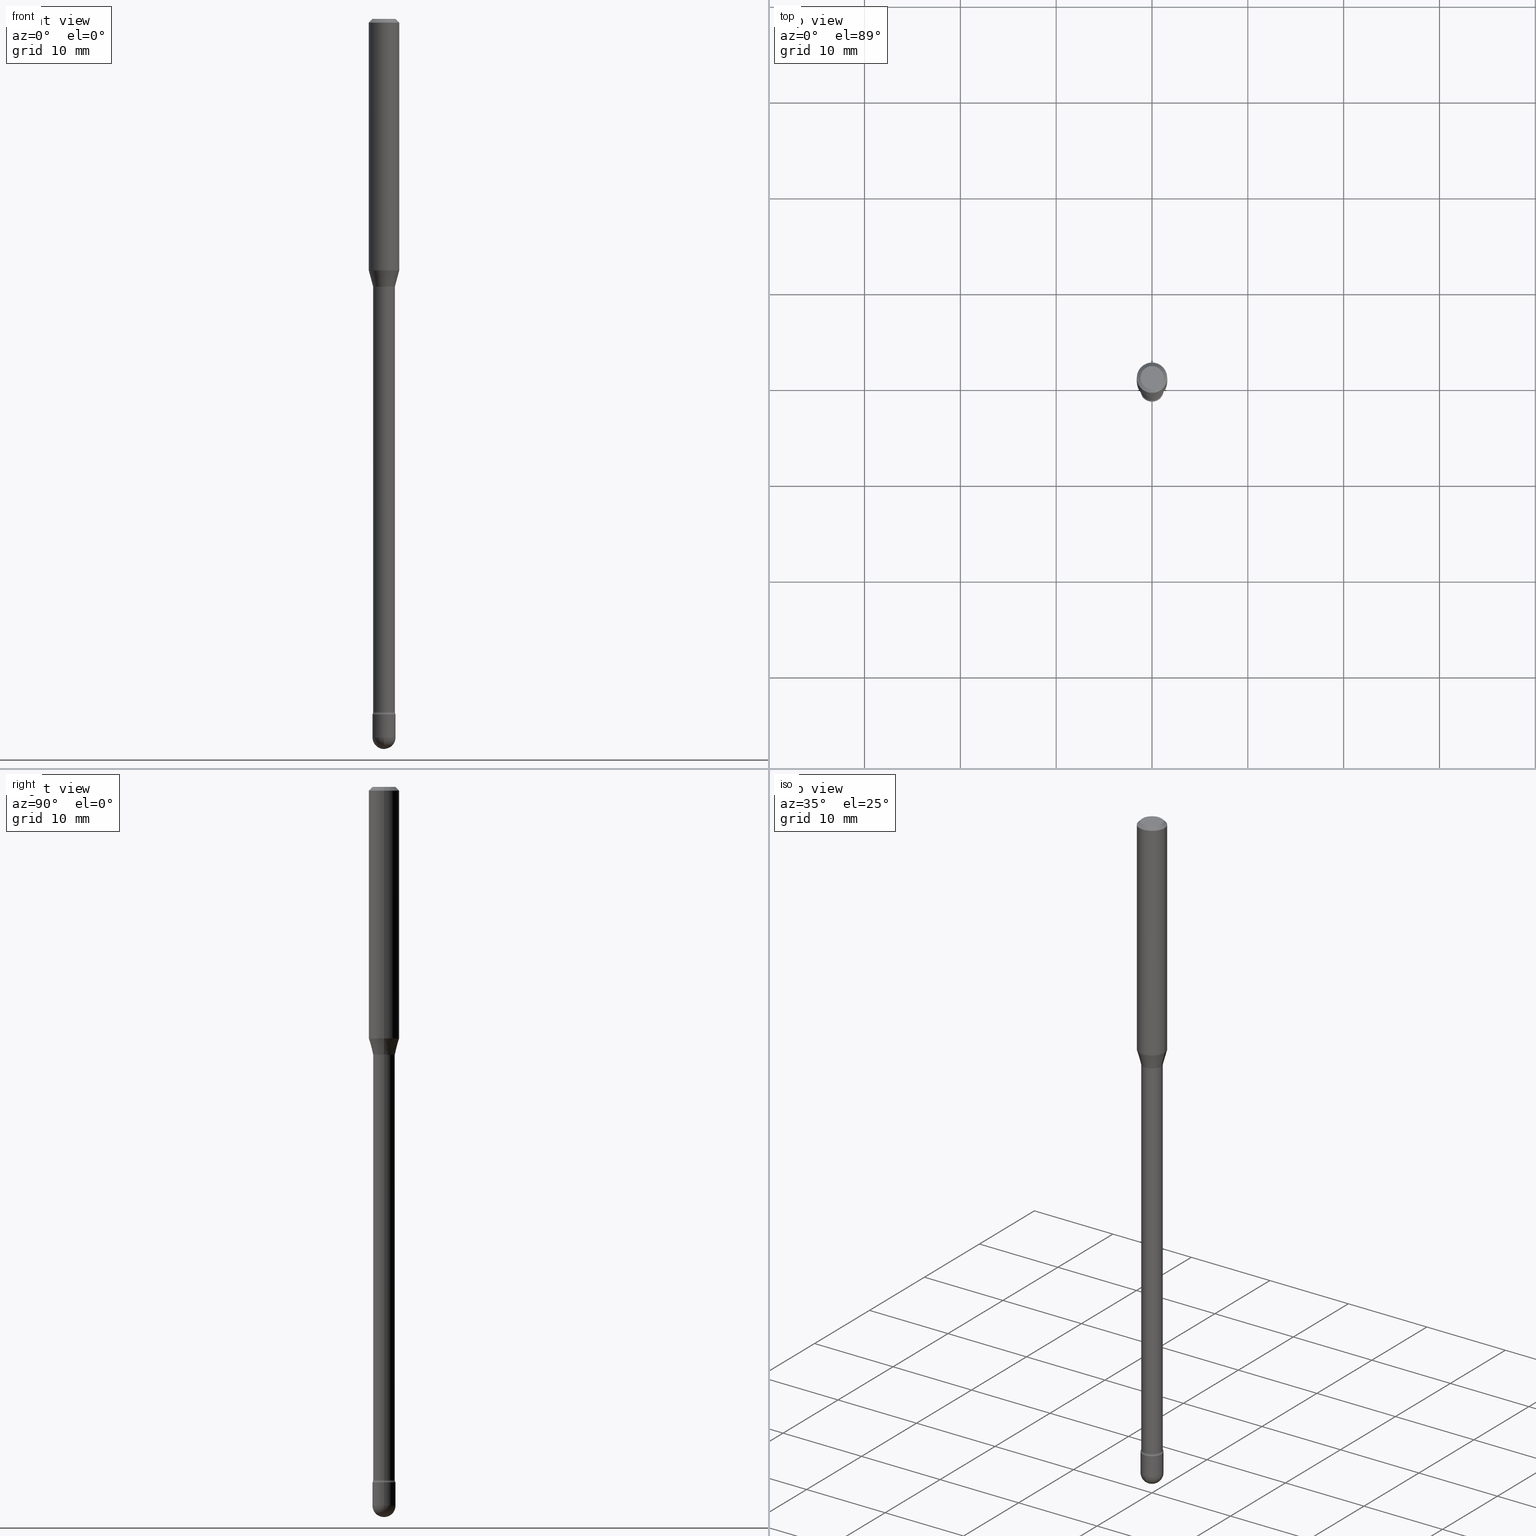
[diagram: canonical four-view strip — front | top / right | iso, engineering-drawing reading convention]
A machine part, canonical four-view strip (front | top / right | iso — engineering-drawing reading convention). The complete STEP part file that produces these views, byte-faithful:
ISO-10303-21;
HEADER;
FILE_DESCRIPTION (( 'STEP AP203' ),
    '1' );
FILE_NAME ('09562.STEP',
    '2024-04-10T00:46:31',
    ( '' ),
    ( '' ),
    'SwSTEP 2.0',
    'SolidWorks 2023',
    '' );
FILE_SCHEMA (( 'CONFIG_CONTROL_DESIGN' ));
ENDSEC;

DATA;
#1 = EDGE_CURVE ( 'NONE', #507, #110, #505, .T. ) ;
#2 = CARTESIAN_POINT ( 'NONE',  ( 2.685350959426573559E-29, -3.833969478313848817E-15, -1.098092501787273356 ) ) ;
#3 = ORIENTED_EDGE ( 'NONE', *, *, #40, .F. ) ;
#4 = EDGE_CURVE ( 'NONE', #128, #332, #480, .T. ) ;
#5 = DIRECTION ( 'NONE',  ( 0.7071067811865475727, -7.319954787623256045E-15, -0.7071067811865474617 ) ) ;
#6 = AXIS2_PLACEMENT_3D ( 'NONE', #144, #565, #142 ) ;
#7 = AXIS2_PLACEMENT_3D ( 'NONE', #378, #346, #288 ) ;
#8 = DIRECTION ( 'NONE',  ( 1.000000000000000000, -6.982962677686260400E-15, 0.000000000000000000 ) ) ;
#9 = ORIENTED_EDGE ( 'NONE', *, *, #1, .T. ) ;
#10 = ADVANCED_FACE ( 'NONE', ( #482 ), #146, .T. ) ;
#11 = FACE_OUTER_BOUND ( 'NONE', #471, .T. ) ;
#12 = CARTESIAN_POINT ( 'NONE',  ( 0.04750000000000000749, -1.047357114619472363E-14, -2.952500000000000124 ) ) ;
#13 = CC_DESIGN_PERSON_AND_ORGANIZATION_ASSIGNMENT ( #563, #485, ( #184 ) ) ;
#14 = LINE ( 'NONE', #238, #461 ) ;
#15 = AXIS2_PLACEMENT_3D ( 'NONE', #373, #532, #156 ) ;
#16 = AXIS2_PLACEMENT_3D ( 'NONE', #410, #55, #17 ) ;
#17 = DIRECTION ( 'NONE',  ( 1.000000000000000000, -6.982962677686261977E-15, 0.000000000000000000 ) ) ;
#18 = DIRECTION ( 'NONE',  ( 1.000000000000000000, -6.982962677686249356E-15, 0.000000000000000000 ) ) ;
#19 = EDGE_LOOP ( 'NONE', ( #307, #488, #86, #281 ) ) ;
#20 = ADVANCED_FACE ( 'NONE', ( #45 ), #94, .T. ) ;
#21 = CC_DESIGN_DATE_AND_TIME_ASSIGNMENT ( #62, #75, ( #184 ) ) ;
#22 = ORIENTED_EDGE ( 'NONE', *, *, #230, .T. ) ;
#23 = PRODUCT_DEFINITION_FORMATION_WITH_SPECIFIED_SOURCE ( 'ANY', '', #74, .NOT_KNOWN. ) ;
#24 = DIMENSIONAL_EXPONENTS ( 1.000000000000000000, 0.000000000000000000, 0.000000000000000000, 0.000000000000000000, 0.000000000000000000, 0.000000000000000000, 0.000000000000000000 ) ;
#25 = VERTEX_POINT ( 'NONE', #512 ) ;
#26 = EDGE_CURVE ( 'NONE', #256, #110, #539, .T. ) ;
#27 = PERSON_AND_ORGANIZATION_ROLE ( 'design_owner' ) ;
#28 = DIRECTION ( 'NONE',  ( 1.000000000000000000, -6.982962677686260400E-15, 0.000000000000000000 ) ) ;
#29 = EDGE_LOOP ( 'NONE', ( #495, #3, #53, #84 ) ) ;
#30 = DIRECTION ( 'NONE',  ( 1.000000000000000000, -6.982962677686267499E-15, 4.884662768193073002E-29 ) ) ;
#31 = ADVANCED_FACE ( 'NONE', ( #226 ), #268, .T. ) ;
#32 = ORIENTED_EDGE ( 'NONE', *, *, #529, .T. ) ;
#33 = DIRECTION ( 'NONE',  ( -2.445468806185136597E-29, 3.491481338843145583E-15, 1.000000000000000000 ) ) ;
#34 = CIRCLE ( 'NONE', #401, 0.04749999999999999362 ) ;
#35 = ORIENTED_EDGE ( 'NONE', *, *, #26, .F. ) ;
#36 = DIRECTION ( 'NONE',  ( 2.445468806185136597E-29, -3.491481338843145583E-15, -1.000000000000000000 ) ) ;
#37 = CARTESIAN_POINT ( 'NONE',  ( 2.023552857353652888E-45, -2.889097183224559242E-31, -8.274703207154537794E-17 ) ) ;
#38 = CARTESIAN_POINT ( 'NONE',  ( -0.04750000000000000749, -9.804372619518581780E-15, -2.952500000000000124 ) ) ;
#39 = DIRECTION ( 'NONE',  ( -2.445468806185136597E-29, 3.491481338843145583E-15, 1.000000000000000000 ) ) ;
#40 = EDGE_CURVE ( 'NONE', #256, #177, #490, .T. ) ;
#41 = CARTESIAN_POINT ( 'NONE',  ( 7.220246650261616071E-29, -1.030859865293438799E-14, -2.952500000000000124 ) ) ;
#42 = CARTESIAN_POINT ( 'NONE',  ( 7.220246650261616071E-29, -1.030859865293438799E-14, -2.952500000000000124 ) ) ;
#43 = CIRCLE ( 'NONE', #371, 0.06250000000000000000 ) ;
#44 = EDGE_CURVE ( 'NONE', #247, #25, #112, .T. ) ;
#45 = FACE_OUTER_BOUND ( 'NONE', #528, .T. ) ;
#46 = CARTESIAN_POINT ( 'NONE',  ( -3.375077994859753129E-16, -0.04750000000001031175, -2.952500000000000124 ) ) ;
#47 = CARTESIAN_POINT ( 'NONE',  ( 2.694844967945245742E-29, -3.847524406305537825E-15, -1.101974787463811056 ) ) ;
#48 = CARTESIAN_POINT ( 'NONE',  ( 0.000000000000000000, 0.000000000000000000, 0.000000000000000000 ) ) ;
#49 = AXIS2_PLACEMENT_3D ( 'NONE', #351, #437, #402 ) ;
#50 = AXIS2_PLACEMENT_3D ( 'NONE', #326, #119, #196 ) ;
#51 = DIRECTION ( 'NONE',  ( -2.445468806185136597E-29, 3.491481338843145583E-15, 1.000000000000000000 ) ) ;
#52 = MECHANICAL_CONTEXT ( 'NONE', #546, 'mechanical' ) ;
#53 = ORIENTED_EDGE ( 'NONE', *, *, #26, .T. ) ;
#54 = DIRECTION ( 'NONE',  ( 1.000000000000000000, 0.000000000000000000, 0.000000000000000000 ) ) ;
#55 = DIRECTION ( 'NONE',  ( -2.445468806185136597E-29, 3.491481338843145583E-15, 1.000000000000000000 ) ) ;
#56 = CARTESIAN_POINT ( 'NONE',  ( 6.986704379270935831E-29, -9.975162185074867400E-15, -2.857000000000000206 ) ) ;
#57 = CARTESIAN_POINT ( 'NONE',  ( 6.986704379270935831E-29, -9.975162185074867400E-15, -2.857000000000000206 ) ) ;
#58 = DIRECTION ( 'NONE',  ( -2.445468806185136597E-29, 3.491481338843145583E-15, 1.000000000000000000 ) ) ;
#59 = AXIS2_PLACEMENT_3D ( 'NONE', #79, #427, #28 ) ;
#60 = ORIENTED_EDGE ( 'NONE', *, *, #324, .T. ) ;
#61 = APPROVAL_PERSON_ORGANIZATION ( #543, #489, #526 ) ;
#62 = DATE_AND_TIME ( #105, #434 ) ;
#63 = DIRECTION ( 'NONE',  ( -2.445468806185136877E-29, 3.491481338843145188E-15, 1.000000000000000000 ) ) ;
#64 = DIRECTION ( 'NONE',  ( 1.000000000000000000, -6.982962677686261977E-15, 0.000000000000000000 ) ) ;
#65 =( NAMED_UNIT ( * ) SI_UNIT ( $, .STERADIAN. ) SOLID_ANGLE_UNIT ( ) );
#66 = ORIENTED_EDGE ( 'NONE', *, *, #230, .F. ) ;
#67 = ADVANCED_FACE ( 'NONE', ( #438 ), #519, .F. ) ;
#68 =( LENGTH_UNIT ( ) NAMED_UNIT ( * ) SI_UNIT ( $, .METRE. ) );
#69 = ORIENTED_EDGE ( 'NONE', *, *, #193, .T. ) ;
#70 = DIRECTION ( 'NONE',  ( 0.2588190451025205729, 1.565188264969628081E-15, 0.9659258262890684232 ) ) ;
#71 = CARTESIAN_POINT ( 'NONE',  ( 3.316907271901674731E-16, 0.04749999999999002243, -2.857000000000000206 ) ) ;
#72 = VERTEX_POINT ( 'NONE', #185 ) ;
#73 = AXIS2_PLACEMENT_3D ( 'NONE', #408, #264, #436 ) ;
#74 = PRODUCT ( '09562', '09562', '', ( #52 ) ) ;
#75 = DATE_TIME_ROLE ( 'classification_date' ) ;
#76 = VECTOR ( 'NONE', #122, 39.37007874015748143 ) ;
#77 = DATE_TIME_ROLE ( 'creation_date' ) ;
#78 = ORIENTED_EDGE ( 'NONE', *, *, #4, .F. ) ;
#79 = CARTESIAN_POINT ( 'NONE',  ( 7.220246650261616071E-29, -1.030859865293438799E-14, -2.952500000000000124 ) ) ;
#80 = ORIENTED_EDGE ( 'NONE', *, *, #380, .F. ) ;
#81 = FACE_OUTER_BOUND ( 'NONE', #202, .T. ) ;
#82 = EDGE_CURVE ( 'NONE', #25, #118, #400, .T. ) ;
#83 = DIRECTION ( 'NONE',  ( -2.445468806185136597E-29, 3.491481338843145583E-15, 1.000000000000000000 ) ) ;
#84 = ORIENTED_EDGE ( 'NONE', *, *, #446, .T. ) ;
#85 = APPROVAL_ROLE ( '' ) ;
#86 = ORIENTED_EDGE ( 'NONE', *, *, #452, .T. ) ;
#87 = EDGE_CURVE ( 'NONE', #247, #287, #475, .T. ) ;
#88 = AXIS2_PLACEMENT_3D ( 'NONE', #286, #381, #18 ) ;
#89 = AXIS2_PLACEMENT_3D ( 'NONE', #48, #104, #418 ) ;
#90 = ORIENTED_EDGE ( 'NONE', *, *, #4, .T. ) ;
#91 = DIRECTION ( 'NONE',  ( -2.438088387897960049E-29, 3.491481338843145188E-15, 1.000000000000000000 ) ) ;
#92 = ADVANCED_FACE ( 'NONE', ( #300 ), #530, .F. ) ;
#93 = CARTESIAN_POINT ( 'NONE',  ( 7.220246650261616071E-29, -1.030859865293438799E-14, -2.952500000000000124 ) ) ;
#94 = CYLINDRICAL_SURFACE ( 'NONE', #323, 0.04465000000000009933 ) ;
#95 = DIRECTION ( 'NONE',  ( -0.7071067811865475727, 2.468850131082257455E-15, -0.7071067811865474617 ) ) ;
#96 = ORIENTED_EDGE ( 'NONE', *, *, #318, .T. ) ;
#97 = LINE ( 'NONE', #298, #433 ) ;
#98 = CARTESIAN_POINT ( 'NONE',  ( 7.220246650261616071E-29, -1.030859865293438799E-14, -2.952500000000000124 ) ) ;
#99 = AXIS2_PLACEMENT_3D ( 'NONE', #71, #131, #200 ) ;
#100 = DIRECTION ( 'NONE',  ( 1.000000000000000000, -6.982962677686266711E-15, 4.890776238491175776E-29 ) ) ;
#101 = DIRECTION ( 'NONE',  ( -2.445468806185136597E-29, 3.491481338843145583E-15, 1.000000000000000000 ) ) ;
#102 =( NAMED_UNIT ( * ) PLANE_ANGLE_UNIT ( ) SI_UNIT ( $, .RADIAN. ) );
#103 = ORIENTED_EDGE ( 'NONE', *, *, #44, .T. ) ;
#104 = DIRECTION ( 'NONE',  ( -2.445468806185136597E-29, 3.491481338843145583E-15, 1.000000000000000000 ) ) ;
#105 = CALENDAR_DATE ( 2024, 9, 4 ) ;
#106 = AXIS2_PLACEMENT_3D ( 'NONE', #107, #451, #54 ) ;
#107 = CARTESIAN_POINT ( 'NONE',  ( 0.000000000000000000, 0.000000000000000000, 0.000000000000000000 ) ) ;
#108 = ORIENTED_EDGE ( 'NONE', *, *, #246, .T. ) ;
#109 = ADVANCED_FACE ( 'NONE', ( #477 ), #222, .F. ) ;
#110 = VERTEX_POINT ( 'NONE', #559 ) ;
#111 = LINE ( 'NONE', #158, #361 ) ;
#112 = CIRCLE ( 'NONE', #486, 0.04749999999999998668 ) ;
#113 = DIRECTION ( 'NONE',  ( -1.000000000000000000, 7.105427357601001070E-15, -4.926315508542082329E-29 ) ) ;
#114 = CC_DESIGN_PERSON_AND_ORGANIZATION_ASSIGNMENT ( #176, #27, ( #74 ) ) ;
#115 = CIRCLE ( 'NONE', #130, 0.01499999999999997689 ) ;
#116 = ORIENTED_EDGE ( 'NONE', *, *, #283, .F. ) ;
#117 = APPROVAL_PERSON_ORGANIZATION ( #306, #523, #470 ) ;
#118 = VERTEX_POINT ( 'NONE', #38 ) ;
#119 = DIRECTION ( 'NONE',  ( -2.445468806185136597E-29, 3.491481338843145583E-15, 1.000000000000000000 ) ) ;
#120 = ADVANCED_FACE ( 'NONE', ( #354 ), #454, .T. ) ;
#121 = CARTESIAN_POINT ( 'NONE',  ( -1.169113584055446105E-44, 1.669184350826100908E-30, 4.780733988912460139E-16 ) ) ;
#122 = DIRECTION ( 'NONE',  ( -2.445468806185136877E-29, 3.491481338843145188E-15, 1.000000000000000000 ) ) ;
#123 = VERTEX_POINT ( 'NONE', #439 ) ;
#124 = CARTESIAN_POINT ( 'NONE',  ( 0.05965000000000016817, -1.036098327424607142E-14, -2.848203551853162985 ) ) ;
#125 = PERSON_AND_ORGANIZATION_ROLE ( 'creator' ) ;
#126 = EDGE_CURVE ( 'NONE', #287, #152, #229, .T. ) ;
#127 = DIRECTION ( 'NONE',  ( -2.445468806185136877E-29, 3.491481338843145188E-15, 1.000000000000000000 ) ) ;
#128 = VERTEX_POINT ( 'NONE', #524 ) ;
#129 = AXIS2_PLACEMENT_3D ( 'NONE', #42, #147, #8 ) ;
#130 = AXIS2_PLACEMENT_3D ( 'NONE', #124, #386, #394 ) ;
#131 = DIRECTION ( 'NONE',  ( -2.438088387897960049E-29, 3.491481338843145188E-15, 1.000000000000000000 ) ) ;
#132 = VERTEX_POINT ( 'NONE', #407 ) ;
#133 = CARTESIAN_POINT ( 'NONE',  ( 7.338437438492210348E-29, -1.047153548038146136E-14, -3.000000000000000444 ) ) ;
#134 = ORIENTED_EDGE ( 'NONE', *, *, #193, .F. ) ;
#135 = EDGE_CURVE ( 'NONE', #177, #256, #409, .T. ) ;
#136 = PERSON_AND_ORGANIZATION_ROLE ( 'design_supplier' ) ;
#137 = ADVANCED_FACE ( 'NONE', ( #11 ), #239, .F. ) ;
#138 = COORDINATED_UNIVERSAL_TIME_OFFSET ( 5, 0, .BEHIND. ) ;
#139 = CIRCLE ( 'NONE', #388, 0.04749999999999999362 ) ;
#140 = CIRCLE ( 'NONE', #223, 0.06250000000000000000 ) ;
#141 = CC_DESIGN_APPROVAL ( #489, ( #184 ) ) ;
#142 = DIRECTION ( 'NONE',  ( 1.000000000000000000, -6.982962677686269077E-15, 0.000000000000000000 ) ) ;
#143 = DIRECTION ( 'NONE',  ( 1.000000000000000000, -6.982962677686267499E-15, 4.884662768193073002E-29 ) ) ;
#144 = CARTESIAN_POINT ( 'NONE',  ( 2.685350959426573559E-29, -3.833969478313848817E-15, -1.098092501787273356 ) ) ;
#145 = LINE ( 'NONE', #484, #487 ) ;
#146 = CYLINDRICAL_SURFACE ( 'NONE', #459, 0.04465000000000009933 ) ;
#147 = DIRECTION ( 'NONE',  ( -2.445468806185136597E-29, 3.491481338843145583E-15, 1.000000000000000000 ) ) ;
#148 = CARTESIAN_POINT ( 'NONE',  ( 0.06250000000000000000, -4.364351673553899931E-16, 4.780733988912490708E-16 ) ) ;
#149 = VECTOR ( 'NONE', #127, 39.37007874015748143 ) ;
#150 = CARTESIAN_POINT ( 'NONE',  ( -0.04749999999999997280, -9.637654385588820695E-15, -2.857000000000000206 ) ) ;
#151 = LINE ( 'NONE', #266, #352 ) ;
#152 = VERTEX_POINT ( 'NONE', #12 ) ;
#153 = ADVANCED_FACE ( 'NONE', ( #218 ), #236, .T. ) ;
#154 = AXIS2_PLACEMENT_3D ( 'NONE', #181, #178, #566 ) ;
#155 = AXIS2_PLACEMENT_3D ( 'NONE', #41, #33, #319 ) ;
#156 = DIRECTION ( 'NONE',  ( -1.000000000000000000, 7.105427357601001859E-15, 0.000000000000000000 ) ) ;
#157 = ORIENTED_EDGE ( 'NONE', *, *, #187, .F. ) ;
#158 = CARTESIAN_POINT ( 'NONE',  ( -0.04750000000000000749, 3.375077994860476415E-16, -2.336494167871080260E-30 ) ) ;
#159 = EDGE_CURVE ( 'NONE', #237, #72, #194, .T. ) ;
#160 = DIRECTION ( 'NONE',  ( 1.000000000000000000, -6.982962677686260400E-15, 0.000000000000000000 ) ) ;
#161 = COORDINATED_UNIVERSAL_TIME_OFFSET ( 5, 0, .BEHIND. ) ;
#162 = DIRECTION ( 'NONE',  ( 1.000000000000000000, -6.982962677686269077E-15, 0.000000000000000000 ) ) ;
#163 = AXIS2_PLACEMENT_3D ( 'NONE', #189, #421, #478 ) ;
#164 = CIRCLE ( 'NONE', #59, 0.04750000000000000749 ) ;
#165 = CARTESIAN_POINT ( 'NONE',  ( 0.04516111260566398056, -4.149327842121987234E-15, -1.098092501787273356 ) ) ;
#166 = CARTESIAN_POINT ( 'NONE',  ( -1.169113584055446105E-44, 1.669184350826100908E-30, 4.780733988912460139E-16 ) ) ;
#167 = ORIENTED_EDGE ( 'NONE', *, *, #135, .F. ) ;
#168 = DIRECTION ( 'NONE',  ( -7.105427357601001070E-15, -1.000000000000000000, 0.000000000000000000 ) ) ;
#169 = ORIENTED_EDGE ( 'NONE', *, *, #417, .T. ) ;
#170 = DIRECTION ( 'NONE',  ( -2.445468806185136597E-29, 3.491481338843145583E-15, 1.000000000000000000 ) ) ;
#171 = APPROVAL_DATE_TIME ( #548, #523 ) ;
#172 = CARTESIAN_POINT ( 'NONE',  ( -0.04465000000000018954, -9.632423302297009755E-15, -2.848203551853162985 ) ) ;
#173 = CIRCLE ( 'NONE', #50, 0.04465000000000018954 ) ;
#174 = FACE_OUTER_BOUND ( 'NONE', #426, .T. ) ;
#175 = ORIENTED_EDGE ( 'NONE', *, *, #318, .F. ) ;
#176 = PERSON_AND_ORGANIZATION ( #301, #564 ) ;
#177 = VERTEX_POINT ( 'NONE', #199 ) ;
#178 = DIRECTION ( 'NONE',  ( -2.445468806185136597E-29, 3.491481338843145583E-15, 1.000000000000000000 ) ) ;
#179 = PERSON_AND_ORGANIZATION ( #301, #564 ) ;
#180 = CARTESIAN_POINT ( 'NONE',  ( 0.05965000000000000163, -4.264058130029524354E-15, -1.101974787463811278 ) ) ;
#181 = CARTESIAN_POINT ( 'NONE',  ( 2.694844967945245742E-29, -3.847524406305538614E-15, -1.101974787463811278 ) ) ;
#182 = AXIS2_PLACEMENT_3D ( 'NONE', #180, #515, #404 ) ;
#183 = CIRCLE ( 'NONE', #190, 0.04749999999999999362 ) ;
#184 = SECURITY_CLASSIFICATION ( '', '', #220 ) ;
#185 = CARTESIAN_POINT ( 'NONE',  ( 0.04465000000000018954, -1.025623883408077648E-14, -2.848203551853162985 ) ) ;
#186 = CARTESIAN_POINT ( 'NONE',  ( 0.04750000000000000749, -3.316907271900977082E-16, 2.316183968503069432E-30 ) ) ;
#187 = EDGE_CURVE ( 'NONE', #237, #276, #272, .T. ) ;
#188 = EDGE_LOOP ( 'NONE', ( #350, #252, #90, #66 ) ) ;
#189 = CARTESIAN_POINT ( 'NONE',  ( 6.965192939722619373E-29, -9.944449550522084107E-15, -2.848203551853162985 ) ) ;
#190 = AXIS2_PLACEMENT_3D ( 'NONE', #57, #368, #64 ) ;
#191 = ADVANCED_FACE ( 'NONE', ( #260 ), #289, .T. ) ;
#192 = ORIENTED_EDGE ( 'NONE', *, *, #225, .T. ) ;
#193 = EDGE_CURVE ( 'NONE', #536, #276, #139, .T. ) ;
#194 = CIRCLE ( 'NONE', #88, 0.04465000000000018954 ) ;
#195 = CIRCLE ( 'NONE', #16, 0.04749999999999999362 ) ;
#196 = DIRECTION ( 'NONE',  ( 1.000000000000000000, -6.982962677686249356E-15, 0.000000000000000000 ) ) ;
#197 = EDGE_LOOP ( 'NONE', ( #557, #556, #374, #22 ) ) ;
#198 = CALENDAR_DATE ( 2024, 9, 4 ) ;
#199 = CARTESIAN_POINT ( 'NONE',  ( -0.04516111260566398056, -3.338514175270728313E-15, -1.098092501787273356 ) ) ;
#200 = DIRECTION ( 'NONE',  ( 1.000000000000000000, -6.982962677686265922E-15, 4.876176775795935793E-29 ) ) ;
#201 = DIRECTION ( 'NONE',  ( -2.445468806185136597E-29, 3.491481338843145583E-15, 1.000000000000000000 ) ) ;
#202 = EDGE_LOOP ( 'NONE', ( #428, #60 ) ) ;
#203 = CLOSED_SHELL ( 'NONE', ( #31, #153, #221, #508, #479 ) ) ;
#204 = AXIS2_PLACEMENT_3D ( 'NONE', #467, #83, #162 ) ;
#205 = DATE_AND_TIME ( #348, #345 ) ;
#206 = LINE ( 'NONE', #186, #149 ) ;
#207 = ORIENTED_EDGE ( 'NONE', *, *, #431, .F. ) ;
#208 = APPROVAL_STATUS ( 'not_yet_approved' ) ;
#209 = CARTESIAN_POINT ( 'NONE',  ( 3.668203209277725232E-31, -5.237222008264747365E-17, -0.01500000000000008271 ) ) ;
#210 = ORIENTED_EDGE ( 'NONE', *, *, #380, .T. ) ;
#211 = ORIENTED_EDGE ( 'NONE', *, *, #1, .F. ) ;
#212 = AXIS2_PLACEMENT_3D ( 'NONE', #514, #481, #267 ) ;
#213 = AXIS2_PLACEMENT_3D ( 'NONE', #257, #170, #509 ) ;
#214 = EDGE_CURVE ( 'NONE', #132, #128, #423, .T. ) ;
#215 = ORIENTED_EDGE ( 'NONE', *, *, #44, .F. ) ;
#216 = DIRECTION ( 'NONE',  ( -2.445468806185136597E-29, 3.491481338843145583E-15, 1.000000000000000000 ) ) ;
#217 = ORIENTED_EDGE ( 'NONE', *, *, #82, .F. ) ;
#218 = FACE_OUTER_BOUND ( 'NONE', #244, .T. ) ;
#219 = DIRECTION ( 'NONE',  ( 2.438088387897960049E-29, -3.491481338843145188E-15, -1.000000000000000000 ) ) ;
#220 = SECURITY_CLASSIFICATION_LEVEL ( 'unclassified' ) ;
#221 = ADVANCED_FACE ( 'NONE', ( #81 ), #389, .T. ) ;
#222 = TOROIDAL_SURFACE ( 'NONE', #49, 0.05965000000000016817, 0.01499999999999997689 ) ;
#223 = AXIS2_PLACEMENT_3D ( 'NONE', #397, #216, #561 ) ;
#224 = MANIFOLD_SOLID_BREP ( 'Body-Move/Copy2[1]', #203 ) ;
#225 = EDGE_CURVE ( 'NONE', #259, #338, #34, .T. ) ;
#226 = FACE_OUTER_BOUND ( 'NONE', #331, .T. ) ;
#227 = CARTESIAN_POINT ( 'NONE',  ( 2.023552857353652888E-45, -2.889097183224559242E-31, -8.274703207154537794E-17 ) ) ;
#228 = DIRECTION ( 'NONE',  ( -2.445468806185136597E-29, 3.491481338843145583E-15, 1.000000000000000000 ) ) ;
#229 = CIRCLE ( 'NONE', #129, 0.04750000000000000749 ) ;
#230 = EDGE_CURVE ( 'NONE', #424, #332, #140, .T. ) ;
#231 = CIRCLE ( 'NONE', #448, 0.06250000000000000000 ) ;
#232 = FACE_OUTER_BOUND ( 'NONE', #29, .T. ) ;
#233 = EDGE_LOOP ( 'NONE', ( #175, #347, #339, #211 ) ) ;
#234 = ORIENTED_EDGE ( 'NONE', *, *, #356, .T. ) ;
#235 = DIRECTION ( 'NONE',  ( 1.000000000000000000, -6.982962677686261977E-15, 0.000000000000000000 ) ) ;
#236 = SPHERICAL_SURFACE ( 'NONE', #552, 0.04749999999999998668 ) ;
#237 = VERTEX_POINT ( 'NONE', #172 ) ;
#238 = CARTESIAN_POINT ( 'NONE',  ( 0.06250000000000000000, -4.811533449433681963E-16, -0.01500000000000008271 ) ) ;
#239 = TOROIDAL_SURFACE ( 'NONE', #163, 0.05965000000000016817, 0.01499999999999997689 ) ;
#240 = CC_DESIGN_SECURITY_CLASSIFICATION ( #184, ( #23 ) ) ;
#241 = CARTESIAN_POINT ( 'NONE',  ( 2.527105629884462696E-29, -3.608037087085655034E-15, -1.033382893084895837 ) ) ;
#242 = ORIENTED_EDGE ( 'NONE', *, *, #353, .F. ) ;
#243 = DIRECTION ( 'NONE',  ( -2.445468806185136597E-29, 3.491481338843145583E-15, 1.000000000000000000 ) ) ;
#244 = EDGE_LOOP ( 'NONE', ( #215, #343, #355, #217 ) ) ;
#245 = FACE_OUTER_BOUND ( 'NONE', #303, .T. ) ;
#246 = EDGE_CURVE ( 'NONE', #72, #536, #115, .T. ) ;
#247 = VERTEX_POINT ( 'NONE', #133 ) ;
#248 = AXIS2_PLACEMENT_3D ( 'NONE', #520, #277, #312 ) ;
#249 = ORIENTED_EDGE ( 'NONE', *, *, #279, .T. ) ;
#250 = CYLINDRICAL_SURFACE ( 'NONE', #491, 0.06250000000000000000 ) ;
#251 = DIRECTION ( 'NONE',  ( -0.2588190451025205729, 5.211531920934545520E-15, 0.9659258262890684232 ) ) ;
#252 = ORIENTED_EDGE ( 'NONE', *, *, #214, .T. ) ;
#253 = CARTESIAN_POINT ( 'NONE',  ( 6.986704379270935831E-29, -9.975162185074867400E-15, -2.857000000000000206 ) ) ;
#254 = APPROVAL_STATUS ( 'not_yet_approved' ) ;
#255 = CARTESIAN_POINT ( 'NONE',  ( -0.04465000000000000219, -6.578729646896923703E-15, -1.101974787463811056 ) ) ;
#256 = VERTEX_POINT ( 'NONE', #469 ) ;
#257 = CARTESIAN_POINT ( 'NONE',  ( 2.527105629884462696E-29, -3.608037087085655034E-15, -1.033382893084895837 ) ) ;
#258 = COORDINATED_UNIVERSAL_TIME_OFFSET ( 5, 0, .BEHIND. ) ;
#259 = VERTEX_POINT ( 'NONE', #430 ) ;
#260 = FACE_OUTER_BOUND ( 'NONE', #197, .T. ) ;
#261 = AXIS2_PLACEMENT_3D ( 'NONE', #2, #51, #412 ) ;
#262 = PRODUCT_DEFINITION_SHAPE ( 'NONE', 'NONE',  #473 ) ;
#263 = AXIS2_PLACEMENT_3D ( 'NONE', #333, #553, #503 ) ;
#264 = DIRECTION ( 'NONE',  ( -2.445468806185136597E-29, 3.491481338843145583E-15, 1.000000000000000000 ) ) ;
#265 = DIRECTION ( 'NONE',  ( 6.982962677686265133E-15, 1.000000000000000000, 0.000000000000000000 ) ) ;
#266 = CARTESIAN_POINT ( 'NONE',  ( -0.06250000000000000000, 3.840629472727441958E-16, -0.01500000000000008271 ) ) ;
#267 = DIRECTION ( 'NONE',  ( 1.000000000000000000, -6.982962677686269077E-15, 0.000000000000000000 ) ) ;
#268 = CYLINDRICAL_SURFACE ( 'NONE', #73, 0.04750000000000000749 ) ;
#269 = DIRECTION ( 'NONE',  ( -2.445468806185136877E-29, 3.491481338843145188E-15, 1.000000000000000000 ) ) ;
#270 = ADVANCED_BREP_SHAPE_REPRESENTATION ( '09562', ( #224, #425, #106 ), #282 ) ;
#271 = APPROVAL_DATE_TIME ( #517, #502 ) ;
#272 = CIRCLE ( 'NONE', #15, 0.01499999999999997689 ) ;
#273 = CIRCLE ( 'NONE', #290, 0.04465000000000000219 ) ;
#274 = LOCAL_TIME ( 20, 46, 31.00000000000000000, #138 ) ;
#275 = DIRECTION ( 'NONE',  ( 1.000000000000000000, -6.982962677686266711E-15, 4.890776238491175776E-29 ) ) ;
#276 = VERTEX_POINT ( 'NONE', #150 ) ;
#277 = DIRECTION ( 'NONE',  ( -2.445468806185136597E-29, 3.491481338843145583E-15, 1.000000000000000000 ) ) ;
#278 = DIRECTION ( 'NONE',  ( -1.000000000000000000, 6.982962677686265922E-15, -4.883557194083112340E-29 ) ) ;
#279 = EDGE_CURVE ( 'NONE', #332, #424, #231, .T. ) ;
#280 = DIRECTION ( 'NONE',  ( 1.000000000000000000, -6.982962677686268288E-15, 4.883557194083113462E-29 ) ) ;
#281 = ORIENTED_EDGE ( 'NONE', *, *, #246, .F. ) ;
#282 =( GEOMETRIC_REPRESENTATION_CONTEXT ( 3 ) GLOBAL_UNCERTAINTY_ASSIGNED_CONTEXT ( ( #366 ) ) GLOBAL_UNIT_ASSIGNED_CONTEXT ( ( #398, #102, #65 ) ) REPRESENTATION_CONTEXT ( 'NONE', 'WORKASPACE' ) );
#283 = EDGE_CURVE ( 'NONE', #259, #424, #151, .T. ) ;
#284 = APPLICATION_PROTOCOL_DEFINITION ( 'international standard', 'config_control_design', 1994, #546 ) ;
#285 = DESIGN_CONTEXT ( 'detailed design', #533, 'design' ) ;
#286 = CARTESIAN_POINT ( 'NONE',  ( 6.965192939722619373E-29, -9.944449550522084107E-15, -2.848203551853162985 ) ) ;
#287 = VERTEX_POINT ( 'NONE', #46 ) ;
#288 = DIRECTION ( 'NONE',  ( -1.000000000000000000, 7.105427357600993970E-15, 0.000000000000000000 ) ) ;
#289 = CONICAL_SURFACE ( 'NONE', #474, 0.06250000000000000000, 0.7853981633974483900 ) ;
#290 = AXIS2_PLACEMENT_3D ( 'NONE', #47, #228, #322 ) ;
#291 = ORIENTED_EDGE ( 'NONE', *, *, #126, .F. ) ;
#292 = EDGE_CURVE ( 'NONE', #338, #259, #411, .T. ) ;
#293 = EDGE_LOOP ( 'NONE', ( #167, #32, #9, #35 ) ) ;
#294 = DIRECTION ( 'NONE',  ( -2.445468806185136877E-29, 3.491481338843145188E-15, 1.000000000000000000 ) ) ;
#295 = EDGE_LOOP ( 'NONE', ( #192, #541 ) ) ;
#296 = DATE_AND_TIME ( #198, #391 ) ;
#297 = CARTESIAN_POINT ( 'NONE',  ( -0.06250000000000000000, 4.440892098500642925E-16, 4.780733988912429571E-16 ) ) ;
#298 = CARTESIAN_POINT ( 'NONE',  ( -0.04516111260566398056, -3.513080473305864602E-15, -1.098092501787273356 ) ) ;
#299 = ORIENTED_EDGE ( 'NONE', *, *, #40, .T. ) ;
#300 = FACE_OUTER_BOUND ( 'NONE', #293, .T. ) ;
#301 = PERSON ( 'UNSPECIFIED', 'UNSPECIFIED', 'UNSPECIFIED', ('UNSPECIFIED'), ('UNSPECIFIED'), ('UNSPECIFIED') ) ;
#302 = LINE ( 'NONE', #313, #76 ) ;
#303 = EDGE_LOOP ( 'NONE', ( #299, #357, #242, #376 ) ) ;
#304 = ORIENTED_EDGE ( 'NONE', *, *, #462, .T. ) ;
#305 = CARTESIAN_POINT ( 'NONE',  ( 6.986704379270935831E-29, -9.975162185074867400E-15, -2.857000000000000206 ) ) ;
#306 = PERSON_AND_ORGANIZATION ( #301, #564 ) ;
#307 = ORIENTED_EDGE ( 'NONE', *, *, #159, .F. ) ;
#308 = COORDINATED_UNIVERSAL_TIME_OFFSET ( 5, 0, .BEHIND. ) ;
#309 = ORIENTED_EDGE ( 'NONE', *, *, #329, .F. ) ;
#310 = DIRECTION ( 'NONE',  ( 1.000000000000000000, -6.982962677686266711E-15, 4.852736867747366207E-29 ) ) ;
#311 = CC_DESIGN_PERSON_AND_ORGANIZATION_ASSIGNMENT ( #179, #125, ( #473 ) ) ;
#312 = DIRECTION ( 'NONE',  ( 1.000000000000000000, -6.982962677686268288E-15, 0.000000000000000000 ) ) ;
#313 = CARTESIAN_POINT ( 'NONE',  ( 0.04465000000000009933, -3.117892835586907926E-16, 4.780733988912482819E-16 ) ) ;
#314 = CARTESIAN_POINT ( 'NONE',  ( 3.316907271900976096E-16, 0.04749999999999999362, 3.181781981480094004E-17 ) ) ;
#315 = CIRCLE ( 'NONE', #7, 0.01499999999999999424 ) ;
#316 = CARTESIAN_POINT ( 'NONE',  ( -1.169113584055446105E-44, 1.669184350826100908E-30, 4.780733988912460139E-16 ) ) ;
#317 = DIRECTION ( 'NONE',  ( -2.445468806185136597E-29, 3.491481338843145583E-15, 1.000000000000000000 ) ) ;
#318 = EDGE_CURVE ( 'NONE', #237, #507, #145, .T. ) ;
#319 = DIRECTION ( 'NONE',  ( 1.000000000000000000, -6.982962677686260400E-15, 0.000000000000000000 ) ) ;
#320 = EDGE_LOOP ( 'NONE', ( #468, #328, #169, #458 ) ) ;
#321 = EDGE_LOOP ( 'NONE', ( #134, #545 ) ) ;
#322 = DIRECTION ( 'NONE',  ( 1.000000000000000000, -6.982962677686268288E-15, 0.000000000000000000 ) ) ;
#323 = AXIS2_PLACEMENT_3D ( 'NONE', #316, #39, #275 ) ;
#324 = EDGE_CURVE ( 'NONE', #387, #123, #183, .T. ) ;
#325 = AXIS2_PLACEMENT_3D ( 'NONE', #227, #363, #143 ) ;
#326 = CARTESIAN_POINT ( 'NONE',  ( 6.965192939722619373E-29, -9.944449550522084107E-15, -2.848203551853162985 ) ) ;
#327 = PERSON_AND_ORGANIZATION ( #301, #564 ) ;
#328 = ORIENTED_EDGE ( 'NONE', *, *, #135, .T. ) ;
#329 = EDGE_CURVE ( 'NONE', #123, #387, #531, .T. ) ;
#330 = CARTESIAN_POINT ( 'NONE',  ( 7.220246650261616071E-29, -1.030859865293438799E-14, -2.952500000000000124 ) ) ;
#331 = EDGE_LOOP ( 'NONE', ( #440, #383, #309, #80, #463 ) ) ;
#332 = VERTEX_POINT ( 'NONE', #537 ) ;
#333 = CARTESIAN_POINT ( 'NONE',  ( 7.220246650261616071E-29, -1.030859865293438799E-14, -2.952500000000000124 ) ) ;
#334 = AXIS2_PLACEMENT_3D ( 'NONE', #314, #219, #399 ) ;
#335 = VECTOR ( 'NONE', #70, 39.37007874015748143 ) ;
#336 = CC_DESIGN_PERSON_AND_ORGANIZATION_ASSIGNMENT ( #494, #136, ( #23 ) ) ;
#337 = DIRECTION ( 'NONE',  ( 6.982962677686265922E-15, 1.000000000000000000, 0.000000000000000000 ) ) ;
#338 = VERTEX_POINT ( 'NONE', #372 ) ;
#339 = ORIENTED_EDGE ( 'NONE', *, *, #393, .T. ) ;
#340 = FACE_OUTER_BOUND ( 'NONE', #419, .T. ) ;
#341 = ORIENTED_EDGE ( 'NONE', *, *, #87, .F. ) ;
#342 = PERSON_AND_ORGANIZATION ( #301, #564 ) ;
#343 = ORIENTED_EDGE ( 'NONE', *, *, #87, .T. ) ;
#344 = AXIS2_PLACEMENT_3D ( 'NONE', #253, #91, #472 ) ;
#345 = LOCAL_TIME ( 20, 46, 31.00000000000000000, #308 ) ;
#346 = DIRECTION ( 'NONE',  ( 7.105427357601001859E-15, 1.000000000000000000, -3.491481338843145583E-15 ) ) ;
#347 = ORIENTED_EDGE ( 'NONE', *, *, #159, .T. ) ;
#348 = CALENDAR_DATE ( 2024, 9, 4 ) ;
#349 = LENGTH_MEASURE_WITH_UNIT ( LENGTH_MEASURE( 0.02539999999999999897 ), #68 );
#350 = ORIENTED_EDGE ( 'NONE', *, *, #554, .F. ) ;
#351 = CARTESIAN_POINT ( 'NONE',  ( 6.965192939722619373E-29, -9.944449550522084107E-15, -2.848203551853162985 ) ) ;
#352 = VECTOR ( 'NONE', #95, 39.37007874015748143 ) ;
#353 = EDGE_CURVE ( 'NONE', #128, #132, #43, .T. ) ;
#354 = FACE_OUTER_BOUND ( 'NONE', #320, .T. ) ;
#355 = ORIENTED_EDGE ( 'NONE', *, *, #542, .F. ) ;
#356 = EDGE_CURVE ( 'NONE', #72, #237, #173, .T. ) ;
#357 = ORIENTED_EDGE ( 'NONE', *, *, #406, .T. ) ;
#358 = EDGE_LOOP ( 'NONE', ( #432, #304, #249, #116 ) ) ;
#359 = PRODUCT_RELATED_PRODUCT_CATEGORY ( 'detail', '', ( #74 ) ) ;
#360 = AXIS2_PLACEMENT_3D ( 'NONE', #98, #58, #160 ) ;
#361 = VECTOR ( 'NONE', #294, 39.37007874015748143 ) ;
#362 = LOCAL_TIME ( 20, 46, 31.00000000000000000, #258 ) ;
#363 = DIRECTION ( 'NONE',  ( -2.445468806185136597E-29, 3.491481338843145583E-15, 1.000000000000000000 ) ) ;
#364 = CYLINDRICAL_SURFACE ( 'NONE', #89, 0.04750000000000000749 ) ;
#365 = FACE_OUTER_BOUND ( 'NONE', #188, .T. ) ;
#366 = UNCERTAINTY_MEASURE_WITH_UNIT (LENGTH_MEASURE( 1.000000000000000082E-05 ), #398, 'distance_accuracy_value', 'NONE');
#367 = EDGE_CURVE ( 'NONE', #118, #387, #111, .T. ) ;
#368 = DIRECTION ( 'NONE',  ( -2.445468806185136597E-29, 3.491481338843145583E-15, 1.000000000000000000 ) ) ;
#369 = CC_DESIGN_DATE_AND_TIME_ASSIGNMENT ( #205, #77, ( #473 ) ) ;
#370 = AXIS2_PLACEMENT_3D ( 'NONE', #330, #113, #168 ) ;
#371 = AXIS2_PLACEMENT_3D ( 'NONE', #241, #492, #498 ) ;
#372 = CARTESIAN_POINT ( 'NONE',  ( 0.04749999999999999362, -4.035134999187581581E-16, -8.274703207154280181E-17 ) ) ;
#373 = CARTESIAN_POINT ( 'NONE',  ( -0.05965000000000016817, -9.520610808641182904E-15, -2.848203551853162985 ) ) ;
#374 = ORIENTED_EDGE ( 'NONE', *, *, #283, .T. ) ;
#375 = ADVANCED_FACE ( 'NONE', ( #365 ), #527, .T. ) ;
#376 = ORIENTED_EDGE ( 'NONE', *, *, #417, .F. ) ;
#377 = APPROVAL_DATE_TIME ( #296, #489 ) ;
#378 = CARTESIAN_POINT ( 'NONE',  ( -0.05965000000000000163, -3.423685664424638595E-15, -1.101974787463811278 ) ) ;
#379 = ORIENTED_EDGE ( 'NONE', *, *, #446, .F. ) ;
#380 = EDGE_CURVE ( 'NONE', #152, #123, #206, .T. ) ;
#381 = DIRECTION ( 'NONE',  ( -2.445468806185136597E-29, 3.491481338843145583E-15, 1.000000000000000000 ) ) ;
#382 = FACE_OUTER_BOUND ( 'NONE', #321, .T. ) ;
#383 = ORIENTED_EDGE ( 'NONE', *, *, #367, .T. ) ;
#384 = DIRECTION ( 'NONE',  ( 2.445468806185136597E-29, -3.491481338843145583E-15, -1.000000000000000000 ) ) ;
#385 = ORIENTED_EDGE ( 'NONE', *, *, #542, .T. ) ;
#386 = DIRECTION ( 'NONE',  ( -6.982962677686266711E-15, -1.000000000000000000, 3.491481338843145583E-15 ) ) ;
#387 = VERTEX_POINT ( 'NONE', #500 ) ;
#388 = AXIS2_PLACEMENT_3D ( 'NONE', #305, #465, #547 ) ;
#389 = PLANE ( 'NONE',  #344 ) ;
#390 = VECTOR ( 'NONE', #63, 39.37007874015748143 ) ;
#391 = LOCAL_TIME ( 20, 46, 31.00000000000000000, #161 ) ;
#392 = EDGE_LOOP ( 'NONE', ( #534, #385, #544, #210, #453 ) ) ;
#393 = EDGE_CURVE ( 'NONE', #72, #110, #302, .T. ) ;
#394 = DIRECTION ( 'NONE',  ( 1.000000000000000000, -6.982962677686279332E-15, 0.000000000000000000 ) ) ;
#395 = CALENDAR_DATE ( 2024, 9, 4 ) ;
#396 = DIRECTION ( 'NONE',  ( -2.445468806185136877E-29, 3.491481338843145188E-15, 1.000000000000000000 ) ) ;
#397 = CARTESIAN_POINT ( 'NONE',  ( 3.668203209277725232E-31, -5.237222008264747365E-17, -0.01500000000000008271 ) ) ;
#398 =( CONVERSION_BASED_UNIT ( 'INCH', #349 ) LENGTH_UNIT ( ) NAMED_UNIT ( #24 ) );
#399 = DIRECTION ( 'NONE',  ( -1.000000000000000000, 6.982962677686265922E-15, -4.876176775795935793E-29 ) ) ;
#400 = CIRCLE ( 'NONE', #360, 0.04750000000000000749 ) ;
#401 = AXIS2_PLACEMENT_3D ( 'NONE', #37, #551, #30 ) ;
#402 = DIRECTION ( 'NONE',  ( 1.000000000000000000, -6.982962677686261189E-15, 4.883557194083110659E-29 ) ) ;
#403 = APPROVAL_PERSON_ORGANIZATION ( #342, #502, #85 ) ;
#404 = DIRECTION ( 'NONE',  ( 1.000000000000000000, -6.982962677686270655E-15, 0.000000000000000000 ) ) ;
#405 = LINE ( 'NONE', #165, #335 ) ;
#406 = EDGE_CURVE ( 'NONE', #177, #132, #97, .T. ) ;
#407 = CARTESIAN_POINT ( 'NONE',  ( -0.06250000000000000000, -3.163947877235592418E-15, -1.033382893084895837 ) ) ;
#408 = CARTESIAN_POINT ( 'NONE',  ( 0.000000000000000000, 0.000000000000000000, 0.000000000000000000 ) ) ;
#409 = CIRCLE ( 'NONE', #261, 0.04516111260566398056 ) ;
#410 = CARTESIAN_POINT ( 'NONE',  ( 6.986704379270935831E-29, -9.975162185074867400E-15, -2.857000000000000206 ) ) ;
#411 = CIRCLE ( 'NONE', #325, 0.04749999999999999362 ) ;
#412 = DIRECTION ( 'NONE',  ( 1.000000000000000000, -6.982962677686269077E-15, 0.000000000000000000 ) ) ;
#413 = CC_DESIGN_PERSON_AND_ORGANIZATION_ASSIGNMENT ( #327, #416, ( #23 ) ) ;
#414 = CARTESIAN_POINT ( 'NONE',  ( 7.220246650261616071E-29, -1.030859865293438799E-14, -2.952500000000000124 ) ) ;
#415 = CONICAL_SURFACE ( 'NONE', #204, 0.04516111260566398056, 0.2617993877991492413 ) ;
#416 = PERSON_AND_ORGANIZATION_ROLE ( 'creator' ) ;
#417 = EDGE_CURVE ( 'NONE', #256, #128, #405, .T. ) ;
#418 = DIRECTION ( 'NONE',  ( 1.000000000000000000, -6.982962677686266711E-15, 4.876176775795934672E-29 ) ) ;
#419 = EDGE_LOOP ( 'NONE', ( #341, #103, #207, #291 ) ) ;
#420 = LINE ( 'NONE', #297, #390 ) ;
#421 = DIRECTION ( 'NONE',  ( -2.445468806185136597E-29, 3.491481338843145583E-15, 1.000000000000000000 ) ) ;
#422 = APPROVAL_STATUS ( 'not_yet_approved' ) ;
#423 = CIRCLE ( 'NONE', #213, 0.06250000000000000000 ) ;
#424 = VERTEX_POINT ( 'NONE', #535 ) ;
#425 = MANIFOLD_SOLID_BREP ( 'Body-Move/Copy2[2]', #521 ) ;
#426 = EDGE_LOOP ( 'NONE', ( #504, #501, #449, #78 ) ) ;
#427 = DIRECTION ( 'NONE',  ( -2.445468806185136597E-29, 3.491481338843145583E-15, 1.000000000000000000 ) ) ;
#428 = ORIENTED_EDGE ( 'NONE', *, *, #329, .T. ) ;
#429 = ORIENTED_EDGE ( 'NONE', *, *, #356, .F. ) ;
#430 = CARTESIAN_POINT ( 'NONE',  ( -0.04749999999999999362, 3.578768372314208041E-16, -8.274703207154778150E-17 ) ) ;
#431 = EDGE_CURVE ( 'NONE', #152, #25, #555, .T. ) ;
#432 = ORIENTED_EDGE ( 'NONE', *, *, #292, .F. ) ;
#433 = VECTOR ( 'NONE', #251, 39.37007874015748143 ) ;
#434 = LOCAL_TIME ( 20, 46, 31.00000000000000000, #516 ) ;
#435 = ADVANCED_FACE ( 'NONE', ( #232 ), #441, .F. ) ;
#436 = DIRECTION ( 'NONE',  ( 1.000000000000000000, -6.982962677686266711E-15, 4.876176775795934672E-29 ) ) ;
#437 = DIRECTION ( 'NONE',  ( -2.445468806185136597E-29, 3.491481338843145583E-15, 1.000000000000000000 ) ) ;
#438 = FACE_OUTER_BOUND ( 'NONE', #295, .T. ) ;
#439 = CARTESIAN_POINT ( 'NONE',  ( 0.04749999999999999362, -1.030685291226496570E-14, -2.857000000000000206 ) ) ;
#440 = ORIENTED_EDGE ( 'NONE', *, *, #82, .T. ) ;
#441 = TOROIDAL_SURFACE ( 'NONE', #476, 0.05965000000000000163, 0.01499999999999999771 ) ;
#442 = DIRECTION ( 'NONE',  ( 1.000000000000000000, -6.982962677686265922E-15, 4.883557194083112340E-29 ) ) ;
#443 = CARTESIAN_POINT ( 'NONE',  ( 3.668203209277725232E-31, -5.237222008264747365E-17, -0.01500000000000008271 ) ) ;
#444 = DIRECTION ( 'NONE',  ( -2.445468806185136597E-29, 3.491481338843145583E-15, 1.000000000000000000 ) ) ;
#445 = DIRECTION ( 'NONE',  ( 1.000000000000000000, -6.982962677686266711E-15, 0.000000000000000000 ) ) ;
#446 = EDGE_CURVE ( 'NONE', #110, #507, #273, .T. ) ;
#447 = FACE_OUTER_BOUND ( 'NONE', #392, .T. ) ;
#448 = AXIS2_PLACEMENT_3D ( 'NONE', #443, #317, #445 ) ;
#449 = ORIENTED_EDGE ( 'NONE', *, *, #279, .F. ) ;
#450 = CC_DESIGN_APPROVAL ( #523, ( #473 ) ) ;
#451 = DIRECTION ( 'NONE',  ( 0.000000000000000000, 0.000000000000000000, 1.000000000000000000 ) ) ;
#452 = EDGE_CURVE ( 'NONE', #276, #536, #195, .T. ) ;
#453 = ORIENTED_EDGE ( 'NONE', *, *, #324, .F. ) ;
#454 = CONICAL_SURFACE ( 'NONE', #212, 0.04516111260566398056, 0.2617993877991492413 ) ;
#455 = CONICAL_SURFACE ( 'NONE', #513, 0.06250000000000000000, 0.7853981633974483900 ) ;
#456 = FACE_OUTER_BOUND ( 'NONE', #358, .T. ) ;
#457 = DIRECTION ( 'NONE',  ( 1.000000000000000000, -6.982962677686266711E-15, 4.852736867747366207E-29 ) ) ;
#458 = ORIENTED_EDGE ( 'NONE', *, *, #214, .F. ) ;
#459 = AXIS2_PLACEMENT_3D ( 'NONE', #560, #444, #100 ) ;
#460 = SPHERICAL_SURFACE ( 'NONE', #263, 0.04749999999999998668 ) ;
#461 = VECTOR ( 'NONE', #5, 39.37007874015748143 ) ;
#462 = EDGE_CURVE ( 'NONE', #338, #332, #14, .T. ) ;
#463 = ORIENTED_EDGE ( 'NONE', *, *, #431, .T. ) ;
#464 = CC_DESIGN_APPROVAL ( #502, ( #23 ) ) ;
#465 = DIRECTION ( 'NONE',  ( -2.445468806185136597E-29, 3.491481338843145583E-15, 1.000000000000000000 ) ) ;
#466 = APPLICATION_PROTOCOL_DEFINITION ( 'international standard', 'config_control_design', 1994, #533 ) ;
#467 = CARTESIAN_POINT ( 'NONE',  ( 2.685350959426573559E-29, -3.833969478313848817E-15, -1.098092501787273356 ) ) ;
#468 = ORIENTED_EDGE ( 'NONE', *, *, #406, .F. ) ;
#469 = CARTESIAN_POINT ( 'NONE',  ( 0.04516111260566398056, -4.149327842121987234E-15, -1.098092501787273356 ) ) ;
#470 = APPROVAL_ROLE ( '' ) ;
#471 = EDGE_LOOP ( 'NONE', ( #157, #429, #108, #69 ) ) ;
#472 = DIRECTION ( 'NONE',  ( 1.000000000000000000, -6.982962677686265922E-15, 4.876176775795935793E-29 ) ) ;
#473 = PRODUCT_DEFINITION ( 'UNKNOWN', '', #23, #285 ) ;
#474 = AXIS2_PLACEMENT_3D ( 'NONE', #558, #36, #510 ) ;
#475 = CIRCLE ( 'NONE', #370, 0.04749999999999998668 ) ;
#476 = AXIS2_PLACEMENT_3D ( 'NONE', #518, #101, #280 ) ;
#477 = FACE_OUTER_BOUND ( 'NONE', #19, .T. ) ;
#478 = DIRECTION ( 'NONE',  ( 1.000000000000000000, -6.982962677686261189E-15, 4.883557194083110659E-29 ) ) ;
#479 = ADVANCED_FACE ( 'NONE', ( #447 ), #364, .T. ) ;
#480 = LINE ( 'NONE', #148, #562 ) ;
#481 = DIRECTION ( 'NONE',  ( -2.445468806185136597E-29, 3.491481338843145583E-15, 1.000000000000000000 ) ) ;
#482 = FACE_OUTER_BOUND ( 'NONE', #233, .T. ) ;
#483 = ADVANCED_FACE ( 'NONE', ( #382 ), #506, .F. ) ;
#484 = CARTESIAN_POINT ( 'NONE',  ( -0.04465000000000009933, 3.172573315168871151E-16, 4.780733988912438446E-16 ) ) ;
#485 = PERSON_AND_ORGANIZATION_ROLE ( 'classification_officer' ) ;
#486 = AXIS2_PLACEMENT_3D ( 'NONE', #93, #442, #265 ) ;
#487 = VECTOR ( 'NONE', #269, 39.37007874015748143 ) ;
#488 = ORIENTED_EDGE ( 'NONE', *, *, #187, .T. ) ;
#489 = APPROVAL ( #208, 'UNSPECIFIED' ) ;
#490 = CIRCLE ( 'NONE', #6, 0.04516111260566398056 ) ;
#491 = AXIS2_PLACEMENT_3D ( 'NONE', #121, #550, #457 ) ;
#492 = DIRECTION ( 'NONE',  ( -2.445468806185136597E-29, 3.491481338843145583E-15, 1.000000000000000000 ) ) ;
#493 = ADVANCED_FACE ( 'NONE', ( #245 ), #415, .T. ) ;
#494 = PERSON_AND_ORGANIZATION ( #301, #564 ) ;
#495 = ORIENTED_EDGE ( 'NONE', *, *, #529, .F. ) ;
#496 = AXIS2_PLACEMENT_3D ( 'NONE', #56, #243, #235 ) ;
#497 = DIRECTION ( 'NONE',  ( -1.000000000000000000, 6.982962677686266711E-15, 0.000000000000000000 ) ) ;
#498 = DIRECTION ( 'NONE',  ( 1.000000000000000000, -6.982962677686270655E-15, 0.000000000000000000 ) ) ;
#499 = CARTESIAN_POINT ( 'NONE',  ( 0.04749999999999997280, -1.030685291226496570E-14, -2.857000000000000206 ) ) ;
#500 = CARTESIAN_POINT ( 'NONE',  ( -0.04749999999999999362, -9.804372619518581780E-15, -2.857000000000000206 ) ) ;
#501 = ORIENTED_EDGE ( 'NONE', *, *, #554, .T. ) ;
#502 = APPROVAL ( #254, 'UNSPECIFIED' ) ;
#503 = DIRECTION ( 'NONE',  ( 6.982962677686265922E-15, 1.000000000000000000, 0.000000000000000000 ) ) ;
#504 = ORIENTED_EDGE ( 'NONE', *, *, #353, .T. ) ;
#505 = CIRCLE ( 'NONE', #248, 0.04465000000000000219 ) ;
#506 = PLANE ( 'NONE',  #99 ) ;
#507 = VERTEX_POINT ( 'NONE', #255 ) ;
#508 = ADVANCED_FACE ( 'NONE', ( #340 ), #460, .T. ) ;
#509 = DIRECTION ( 'NONE',  ( 1.000000000000000000, -6.982962677686270655E-15, 0.000000000000000000 ) ) ;
#510 = DIRECTION ( 'NONE',  ( -1.000000000000000000, 6.982962677686266711E-15, 0.000000000000000000 ) ) ;
#511 = ADVANCED_FACE ( 'NONE', ( #174 ), #250, .T. ) ;
#512 = CARTESIAN_POINT ( 'NONE',  ( 3.316907271901697904E-16, 0.04749999999998968242, -2.952500000000000124 ) ) ;
#513 = AXIS2_PLACEMENT_3D ( 'NONE', #209, #384, #497 ) ;
#514 = CARTESIAN_POINT ( 'NONE',  ( 2.685350959426573559E-29, -3.833969478313848817E-15, -1.098092501787273356 ) ) ;
#515 = DIRECTION ( 'NONE',  ( -6.982962677686266711E-15, -1.000000000000000000, 3.491481338843145583E-15 ) ) ;
#516 = COORDINATED_UNIVERSAL_TIME_OFFSET ( 5, 0, .BEHIND. ) ;
#517 = DATE_AND_TIME ( #525, #362 ) ;
#518 = CARTESIAN_POINT ( 'NONE',  ( 2.694844967945245742E-29, -3.847524406305538614E-15, -1.101974787463811278 ) ) ;
#519 = PLANE ( 'NONE',  #334 ) ;
#520 = CARTESIAN_POINT ( 'NONE',  ( 2.694844967945245742E-29, -3.847524406305537825E-15, -1.101974787463811056 ) ) ;
#521 = CLOSED_SHELL ( 'NONE', ( #92, #20, #109, #549, #511, #493, #120, #375, #191, #67, #483, #137, #10, #435 ) ) ;
#522 = AXIS2_PLACEMENT_3D ( 'NONE', #166, #201, #310 ) ;
#523 = APPROVAL ( #422, 'UNSPECIFIED' ) ;
#524 = CARTESIAN_POINT ( 'NONE',  ( 0.06250000000000000000, -4.044472254441047492E-15, -1.033382893084895837 ) ) ;
#525 = CALENDAR_DATE ( 2024, 9, 4 ) ;
#526 = APPROVAL_ROLE ( '' ) ;
#527 = CYLINDRICAL_SURFACE ( 'NONE', #522, 0.06250000000000000000 ) ;
#528 = EDGE_LOOP ( 'NONE', ( #234, #96, #379, #538 ) ) ;
#529 = EDGE_CURVE ( 'NONE', #177, #507, #315, .T. ) ;
#530 = TOROIDAL_SURFACE ( 'NONE', #154, 0.05965000000000000163, 0.01499999999999999771 ) ;
#531 = CIRCLE ( 'NONE', #496, 0.04749999999999999362 ) ;
#532 = DIRECTION ( 'NONE',  ( 7.105427357601001859E-15, 1.000000000000000000, -3.491481338843145583E-15 ) ) ;
#533 = APPLICATION_CONTEXT ( 'configuration controlled 3d designs of mechanical parts and assemblies' ) ;
#534 = ORIENTED_EDGE ( 'NONE', *, *, #367, .F. ) ;
#535 = CARTESIAN_POINT ( 'NONE',  ( -0.06250000000000000000, -1.386115443734088835E-15, -0.01500000000000008271 ) ) ;
#536 = VERTEX_POINT ( 'NONE', #499 ) ;
#537 = CARTESIAN_POINT ( 'NONE',  ( 0.06250000000000000000, -4.888073874380391431E-16, -0.01500000000000008271 ) ) ;
#538 = ORIENTED_EDGE ( 'NONE', *, *, #393, .F. ) ;
#539 = CIRCLE ( 'NONE', #182, 0.01499999999999999424 ) ;
#540 = SHAPE_DEFINITION_REPRESENTATION ( #262, #270 ) ;
#541 = ORIENTED_EDGE ( 'NONE', *, *, #292, .T. ) ;
#542 = EDGE_CURVE ( 'NONE', #118, #287, #164, .T. ) ;
#543 = PERSON_AND_ORGANIZATION ( #301, #564 ) ;
#544 = ORIENTED_EDGE ( 'NONE', *, *, #126, .T. ) ;
#545 = ORIENTED_EDGE ( 'NONE', *, *, #452, .F. ) ;
#546 = APPLICATION_CONTEXT ( 'configuration controlled 3d designs of mechanical parts and assemblies' ) ;
#547 = DIRECTION ( 'NONE',  ( 1.000000000000000000, -6.982962677686261977E-15, 0.000000000000000000 ) ) ;
#548 = DATE_AND_TIME ( #395, #274 ) ;
#549 = ADVANCED_FACE ( 'NONE', ( #456 ), #455, .T. ) ;
#550 = DIRECTION ( 'NONE',  ( -2.445468806185136597E-29, 3.491481338843145583E-15, 1.000000000000000000 ) ) ;
#551 = DIRECTION ( 'NONE',  ( -2.445468806185136597E-29, 3.491481338843145583E-15, 1.000000000000000000 ) ) ;
#552 = AXIS2_PLACEMENT_3D ( 'NONE', #414, #278, #337 ) ;
#553 = DIRECTION ( 'NONE',  ( -1.000000000000000000, 6.982962677686265922E-15, -4.883557194083112340E-29 ) ) ;
#554 = EDGE_CURVE ( 'NONE', #132, #424, #420, .T. ) ;
#555 = CIRCLE ( 'NONE', #155, 0.04750000000000000749 ) ;
#556 = ORIENTED_EDGE ( 'NONE', *, *, #225, .F. ) ;
#557 = ORIENTED_EDGE ( 'NONE', *, *, #462, .F. ) ;
#558 = CARTESIAN_POINT ( 'NONE',  ( 3.668203209277725232E-31, -5.237222008264747365E-17, -0.01500000000000008271 ) ) ;
#559 = CARTESIAN_POINT ( 'NONE',  ( 0.04465000000000000219, -4.159313689864229407E-15, -1.101974787463811056 ) ) ;
#560 = CARTESIAN_POINT ( 'NONE',  ( -1.169113584055446105E-44, 1.669184350826100908E-30, 4.780733988912460139E-16 ) ) ;
#561 = DIRECTION ( 'NONE',  ( 1.000000000000000000, -6.982962677686266711E-15, 0.000000000000000000 ) ) ;
#562 = VECTOR ( 'NONE', #396, 39.37007874015748143 ) ;
#563 = PERSON_AND_ORGANIZATION ( #301, #564 ) ;
#564 = ORGANIZATION ( 'UNSPECIFIED', 'UNSPECIFIED', '' ) ;
#565 = DIRECTION ( 'NONE',  ( -2.445468806185136597E-29, 3.491481338843145583E-15, 1.000000000000000000 ) ) ;
#566 = DIRECTION ( 'NONE',  ( 1.000000000000000000, -6.982962677686268288E-15, 4.883557194083113462E-29 ) ) ;
ENDSEC;
END-ISO-10303-21;
